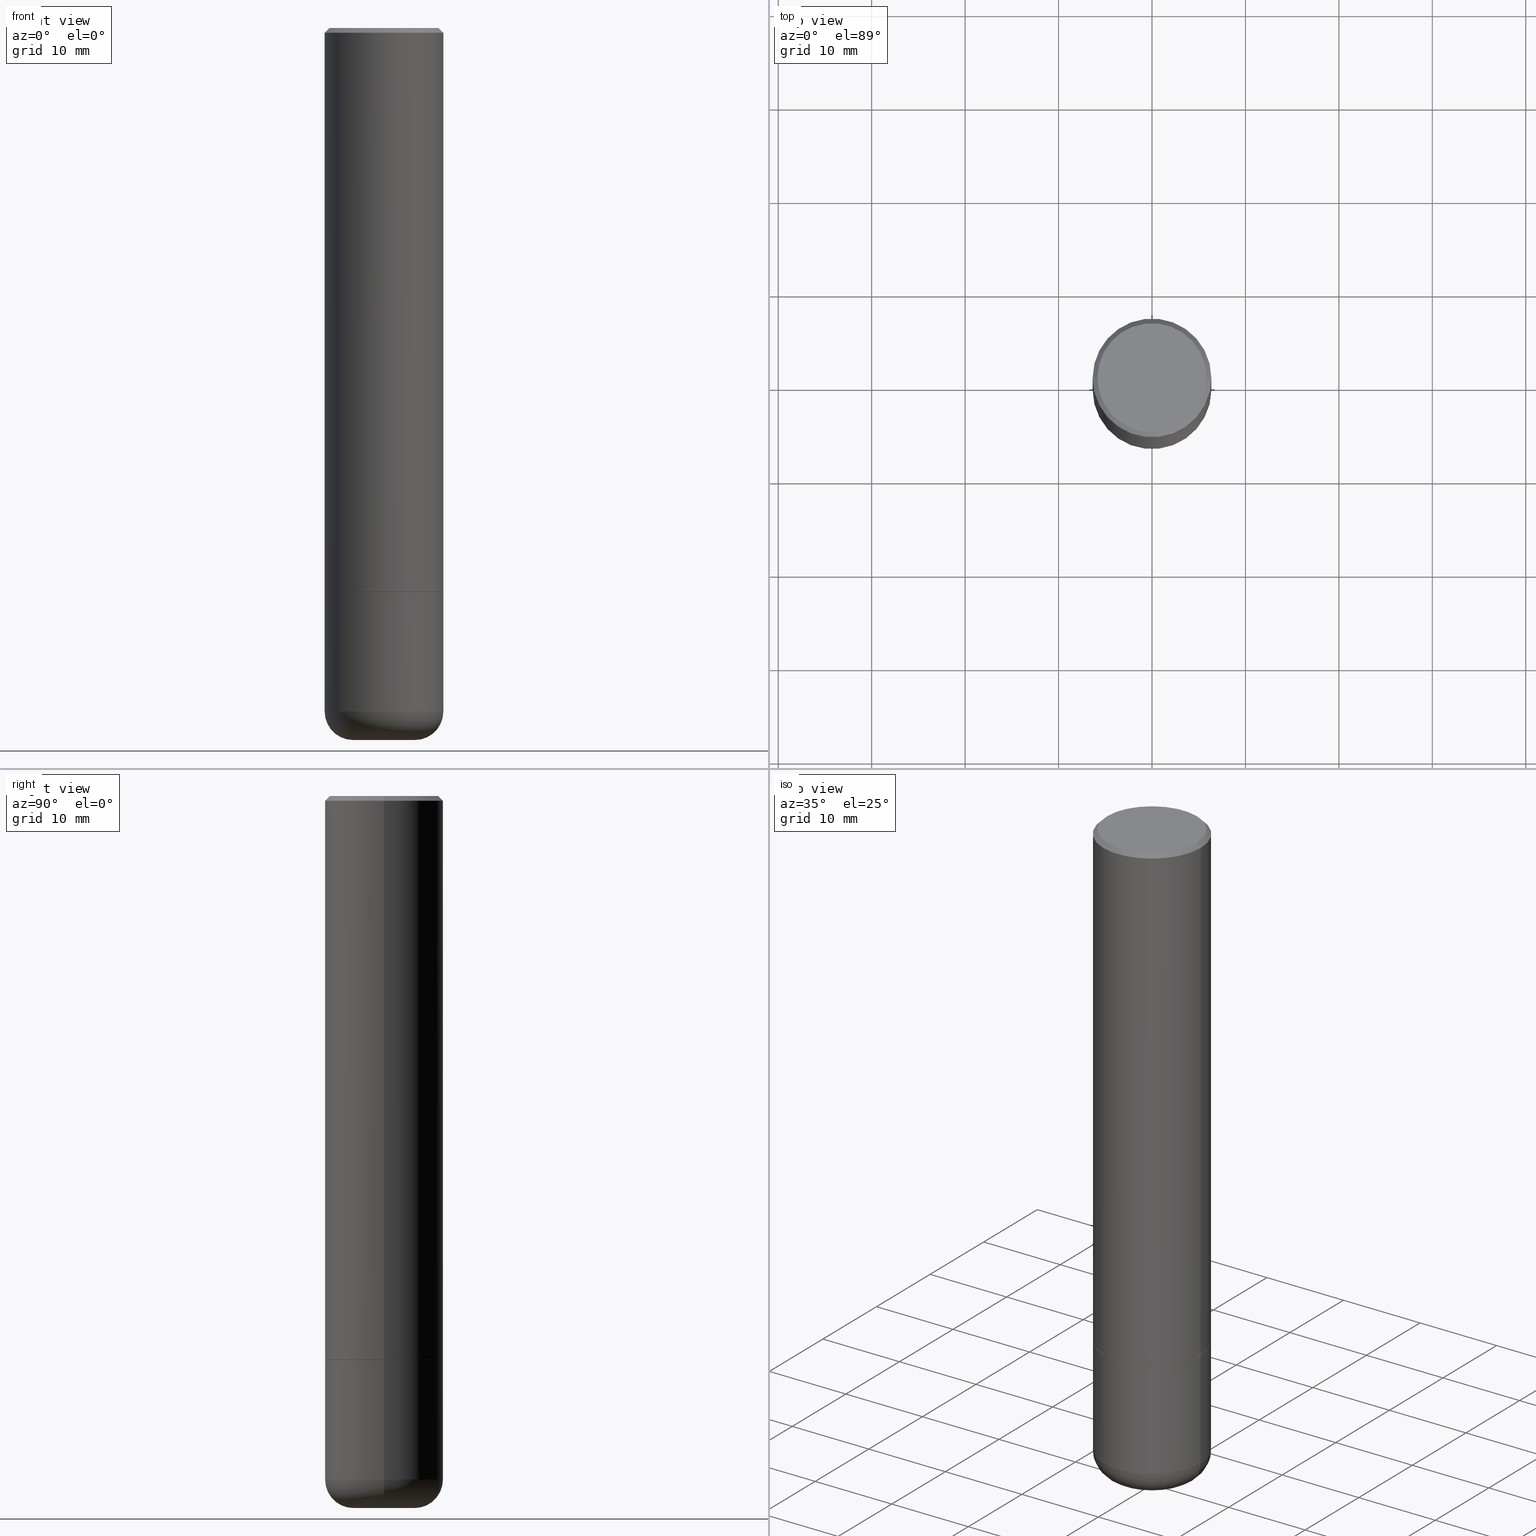
[diagram: canonical four-view strip — front | top / right | iso, engineering-drawing reading convention]
A machine part, canonical four-view strip (front | top / right | iso — engineering-drawing reading convention). The complete STEP part file that produces these views, byte-faithful:
ISO-10303-21;
HEADER;
FILE_DESCRIPTION (( 'STEP AP203' ),
    '1' );
FILE_NAME ('35602.STEP',
    '2022-11-02T20:25:44',
    ( '' ),
    ( '' ),
    'SwSTEP 2.0',
    'SolidWorks 2022',
    '' );
FILE_SCHEMA (( 'CONFIG_CONTROL_DESIGN' ));
ENDSEC;

DATA;
#1 = CC_DESIGN_PERSON_AND_ORGANIZATION_ASSIGNMENT ( #394, #461, ( #397 ) ) ;
#2 = LINE ( 'NONE', #32, #192 ) ;
#3 = CONICAL_SURFACE ( 'NONE', #415, 0.2499999999999993061, 0.7853981633974477239 ) ;
#4 = CARTESIAN_POINT ( 'NONE',  ( -0.2499999999999998057, 1.776356839400249084E-15, -1.229733772563725465E-29 ) ) ;
#5 = AXIS2_PLACEMENT_3D ( 'NONE', #239, #318, #245 ) ;
#6 = APPROVAL_ROLE ( '' ) ;
#7 = CARTESIAN_POINT ( 'NONE',  ( -0.2299999999999992328, 1.640996229256267392E-15, 8.537024980189468815E-18 ) ) ;
#8 = PERSON ( 'UNSPECIFIED', 'UNSPECIFIED', 'UNSPECIFIED', ('UNSPECIFIED'), ('UNSPECIFIED'), ('UNSPECIFIED') ) ;
#9 = CARTESIAN_POINT ( 'NONE',  ( -0.2499999999999993061, 1.675911042644698449E-15, -0.02000000000000010797 ) ) ;
#10 = EDGE_CURVE ( 'NONE', #380, #77, #42, .T. ) ;
#11 = CARTESIAN_POINT ( 'NONE',  ( -0.2489999999999995828, -6.517718313361602992E-15, -2.375000000000000000 ) ) ;
#12 = AXIS2_PLACEMENT_3D ( 'NONE', #177, #255, #410 ) ;
#13 = PERSON_AND_ORGANIZATION ( #8, #231 ) ;
#14 = DIRECTION ( 'NONE',  ( -2.445468806185136597E-29, 3.491481338843145583E-15, 1.000000000000000000 ) ) ;
#15 = CC_DESIGN_DATE_AND_TIME_ASSIGNMENT ( #306, #456, ( #445 ) ) ;
#16 = DIRECTION ( 'NONE',  ( 1.000000000000000000, -6.982962677686259611E-15, 0.000000000000000000 ) ) ;
#17 = DIRECTION ( 'NONE',  ( -0.7071067811865232589, 7.493145998870265808E-15, 0.7071067811865715536 ) ) ;
#18 = CIRCLE ( 'NONE', #140, 0.2499999999999995837 ) ;
#19 = DIRECTION ( 'NONE',  ( -1.000000000000000000, 6.982962677686269866E-15, 0.000000000000000000 ) ) ;
#20 = MANIFOLD_SOLID_BREP ( 'Body-Move/Copy2[2]', #265 ) ;
#21 = ORIENTED_EDGE ( 'NONE', *, *, #314, .T. ) ;
#22 = TOROIDAL_SURFACE ( 'NONE', #324, 0.1300000000000001710, 0.1200000000000000927 ) ;
#23 = CARTESIAN_POINT ( 'NONE',  ( 5.807988414689700538E-29, -8.292268179752471696E-15, -2.375000000000000000 ) ) ;
#24 = EDGE_CURVE ( 'NONE', #455, #380, #210, .T. ) ;
#25 = ORIENTED_EDGE ( 'NONE', *, *, #479, .F. ) ;
#26 = DIRECTION ( 'NONE',  ( 1.000000000000000000, -6.982962677686266711E-15, 4.876176775795935793E-29 ) ) ;
#27 = ORIENTED_EDGE ( 'NONE', *, *, #291, .T. ) ;
#28 = DIRECTION ( 'NONE',  ( -1.000000000000000000, 6.982962677686265922E-15, -4.876176775795935793E-29 ) ) ;
#29 = AXIS2_PLACEMENT_3D ( 'NONE', #476, #139, #441 ) ;
#30 = ORIENTED_EDGE ( 'NONE', *, *, #345, .F. ) ;
#31 = ADVANCED_FACE ( 'NONE', ( #236 ), #22, .T. ) ;
#32 = CARTESIAN_POINT ( 'NONE',  ( 0.2489999999999995828, -1.003102588649634920E-14, -2.375000000000000000 ) ) ;
#33 = ORIENTED_EDGE ( 'NONE', *, *, #451, .T. ) ;
#34 = ORIENTED_EDGE ( 'NONE', *, *, #83, .T. ) ;
#35 = PRODUCT_DEFINITION_FORMATION_WITH_SPECIFIED_SOURCE ( 'ANY', '', #393, .NOT_KNOWN. ) ;
#36 = COORDINATED_UNIVERSAL_TIME_OFFSET ( 5, 0, .BEHIND. ) ;
#37 = DIRECTION ( 'NONE',  ( -2.445468806185136597E-29, 3.491481338843145583E-15, 1.000000000000000000 ) ) ;
#38 = PERSON_AND_ORGANIZATION_ROLE ( 'creator' ) ;
#39 = EDGE_LOOP ( 'NONE', ( #178, #71, #25, #220 ) ) ;
#40 = EDGE_CURVE ( 'NONE', #335, #199, #492, .T. ) ;
#41 = DIRECTION ( 'NONE',  ( 0.7071067811865471286, -7.319954787623254468E-15, -0.7071067811865479058 ) ) ;
#42 = LINE ( 'NONE', #417, #216 ) ;
#43 = ADVANCED_FACE ( 'NONE', ( #423 ), #214, .T. ) ;
#44 = DIRECTION ( 'NONE',  ( -2.445468806185136877E-29, 3.491481338843145188E-15, 1.000000000000000000 ) ) ;
#45 = AXIS2_PLACEMENT_3D ( 'NONE', #85, #241, #360 ) ;
#46 = EDGE_CURVE ( 'NONE', #199, #375, #399, .T. ) ;
#47 = DIRECTION ( 'NONE',  ( -2.445468806185136597E-29, 3.491481338843145583E-15, 1.000000000000000000 ) ) ;
#48 = DIRECTION ( 'NONE',  ( -6.982962677686266711E-15, -1.000000000000000000, 3.491481338843145583E-15 ) ) ;
#49 = PERSON_AND_ORGANIZATION ( #8, #231 ) ;
#50 = DIRECTION ( 'NONE',  ( -2.445468806185136597E-29, 3.491481338843145583E-15, 1.000000000000000000 ) ) ;
#51 = CONICAL_SURFACE ( 'NONE', #76, 0.1022878157401959226, 1.535889741755009696 ) ;
#52 = DIRECTION ( 'NONE',  ( 2.438088387897960049E-29, -3.491481338843145188E-15, -1.000000000000000000 ) ) ;
#53 = EDGE_CURVE ( 'NONE', #70, #254, #342, .T. ) ;
#54 = CARTESIAN_POINT ( 'NONE',  ( 0.1022878157401959226, -1.117537689716662180E-14, -2.999767298070359800 ) ) ;
#55 = CARTESIAN_POINT ( 'NONE',  ( 0.2499999999999998057, -1.745740669421565297E-15, 1.219044193948982967E-29 ) ) ;
#56 =( GEOMETRIC_REPRESENTATION_CONTEXT ( 3 ) GLOBAL_UNCERTAINTY_ASSIGNED_CONTEXT ( ( #87 ) ) GLOBAL_UNIT_ASSIGNED_CONTEXT ( ( #336, #300, #229 ) ) REPRESENTATION_CONTEXT ( 'NONE', 'WORKASPACE' ) );
#57 = ORIENTED_EDGE ( 'NONE', *, *, #219, .T. ) ;
#58 = CIRCLE ( 'NONE', #458, 0.1200000000000000927 ) ;
#59 = DIRECTION ( 'NONE',  ( -2.445468806185136597E-29, 3.491481338843145583E-15, 1.000000000000000000 ) ) ;
#60 = APPLICATION_CONTEXT ( 'configuration controlled 3d designs of mechanical parts and assemblies' ) ;
#61 = ADVANCED_FACE ( 'NONE', ( #119 ), #426, .T. ) ;
#62 = EDGE_LOOP ( 'NONE', ( #27, #81, #490, #327 ) ) ;
#63 = FACE_OUTER_BOUND ( 'NONE', #377, .T. ) ;
#64 = EDGE_LOOP ( 'NONE', ( #295, #403, #385, #138 ) ) ;
#65 = DIRECTION ( 'NONE',  ( 2.445468806185136597E-29, -3.491481338843145583E-15, -1.000000000000000000 ) ) ;
#66 = VERTEX_POINT ( 'NONE', #7 ) ;
#67 = EDGE_CURVE ( 'NONE', #475, #108, #162, .T. ) ;
#68 = DIRECTION ( 'NONE',  ( -2.445468806185136597E-29, 3.491481338843145583E-15, 1.000000000000000000 ) ) ;
#69 = AXIS2_PLACEMENT_3D ( 'NONE', #487, #457, #160 ) ;
#70 = VERTEX_POINT ( 'NONE', #420 ) ;
#71 = ORIENTED_EDGE ( 'NONE', *, *, #105, .T. ) ;
#72 = APPROVAL_DATE_TIME ( #234, #343 ) ;
#73 = CARTESIAN_POINT ( 'NONE',  ( 0.2499999999999993061, -1.784954126219741456E-15, -0.02000000000000010797 ) ) ;
#74 = VECTOR ( 'NONE', #41, 39.37007874015748143 ) ;
#75 = CARTESIAN_POINT ( 'NONE',  ( 5.805542945883514935E-29, -8.288776698413628688E-15, -2.374000000000000110 ) ) ;
#76 = AXIS2_PLACEMENT_3D ( 'NONE', #373, #483, #19 ) ;
#77 = VERTEX_POINT ( 'NONE', #73 ) ;
#78 = ADVANCED_FACE ( 'NONE', ( #195 ), #91, .T. ) ;
#79 = CARTESIAN_POINT ( 'NONE',  ( 0.000000000000000000, 0.000000000000000000, 0.000000000000000000 ) ) ;
#80 = APPLICATION_CONTEXT ( 'configuration controlled 3d designs of mechanical parts and assemblies' ) ;
#81 = ORIENTED_EDGE ( 'NONE', *, *, #407, .T. ) ;
#82 = ORIENTED_EDGE ( 'NONE', *, *, #53, .F. ) ;
#83 = EDGE_CURVE ( 'NONE', #108, #446, #331, .T. ) ;
#84 = APPROVAL_DATE_TIME ( #358, #485 ) ;
#85 = CARTESIAN_POINT ( 'NONE',  ( 0.000000000000000000, 0.000000000000000000, 0.000000000000000000 ) ) ;
#86 = AXIS2_PLACEMENT_3D ( 'NONE', #319, #48, #170 ) ;
#87 = UNCERTAINTY_MEASURE_WITH_UNIT (LENGTH_MEASURE( 1.000000000000000082E-05 ), #336, 'distance_accuracy_value', 'NONE');
#88 = DIRECTION ( 'NONE',  ( 1.000000000000000000, -6.982962677686269077E-15, 0.000000000000000000 ) ) ;
#89 = PERSON_AND_ORGANIZATION ( #8, #231 ) ;
#90 = CARTESIAN_POINT ( 'NONE',  ( -0.1289528157401959862, -8.918652260793341109E-15, -3.000000000000000444 ) ) ;
#91 = CYLINDRICAL_SURFACE ( 'NONE', #45, 0.2499999999999994449 ) ;
#92 = CC_DESIGN_SECURITY_CLASSIFICATION ( #397, ( #35 ) ) ;
#93 = EDGE_CURVE ( 'NONE', #254, #475, #208, .T. ) ;
#94 = CIRCLE ( 'NONE', #280, 0.2489999999999995828 ) ;
#95 = FACE_OUTER_BOUND ( 'NONE', #173, .T. ) ;
#96 = CARTESIAN_POINT ( 'NONE',  ( 1.606081415867835743E-15, 0.2299999999999992328, -7.987721954438203042E-16 ) ) ;
#97 = ORIENTED_EDGE ( 'NONE', *, *, #40, .F. ) ;
#98 = EDGE_CURVE ( 'NONE', #347, #335, #309, .T. ) ;
#99 = DIRECTION ( 'NONE',  ( 0.9999619230641714207, -6.890705306874825328E-15, -0.008726535498369011531 ) ) ;
#100 = ORIENTED_EDGE ( 'NONE', *, *, #168, .T. ) ;
#101 = CONICAL_SURFACE ( 'NONE', #424, 0.2489999999999995828, 0.7853981633974141952 ) ;
#102 = CARTESIAN_POINT ( 'NONE',  ( 0.2500000000000000555, -1.180122287867913443E-14, -2.880004569232299527 ) ) ;
#103 = ORIENTED_EDGE ( 'NONE', *, *, #168, .F. ) ;
#104 = DIRECTION ( 'NONE',  ( -2.445468806185136597E-29, 3.491481338843145583E-15, 1.000000000000000000 ) ) ;
#105 = EDGE_CURVE ( 'NONE', #106, #455, #355, .T. ) ;
#106 = VERTEX_POINT ( 'NONE', #11 ) ;
#107 = CARTESIAN_POINT ( 'NONE',  ( 7.042961335728249090E-29, -1.005548220925756617E-14, -2.880004569232299527 ) ) ;
#108 = VERTEX_POINT ( 'NONE', #90 ) ;
#109 = AXIS2_PLACEMENT_3D ( 'NONE', #330, #224, #473 ) ;
#110 = VECTOR ( 'NONE', #151, 39.37007874015748143 ) ;
#111 = ORIENTED_EDGE ( 'NONE', *, *, #46, .T. ) ;
#112 = MECHANICAL_CONTEXT ( 'NONE', #60, 'mechanical' ) ;
#113 = DIRECTION ( 'NONE',  ( -2.445468806185136597E-29, 3.491481338843145583E-15, 1.000000000000000000 ) ) ;
#114 = EDGE_CURVE ( 'NONE', #66, #188, #481, .T. ) ;
#115 = LINE ( 'NONE', #302, #74 ) ;
#116 = ORIENTED_EDGE ( 'NONE', *, *, #345, .T. ) ;
#117 = CIRCLE ( 'NONE', #109, 0.2499999999999995837 ) ;
#118 = CIRCLE ( 'NONE', #142, 0.1022878157401959226 ) ;
#119 = FACE_OUTER_BOUND ( 'NONE', #276, .T. ) ;
#120 = ORIENTED_EDGE ( 'NONE', *, *, #381, .T. ) ;
#121 = CARTESIAN_POINT ( 'NONE',  ( 0.000000000000000000, 0.000000000000000000, 0.000000000000000000 ) ) ;
#122 = ORIENTED_EDGE ( 'NONE', *, *, #312, .F. ) ;
#123 = APPROVAL_STATUS ( 'not_yet_approved' ) ;
#124 = CARTESIAN_POINT ( 'NONE',  ( 7.336406418555409790E-29, -1.047444401652943635E-14, -3.000000000000000444 ) ) ;
#125 = CARTESIAN_POINT ( 'NONE',  ( 1.745740669421621503E-15, 0.2499999999999912847, -2.375000000000000888 ) ) ;
#126 = VECTOR ( 'NONE', #44, 39.37007874015748143 ) ;
#127 = VECTOR ( 'NONE', #470, 39.37007874015748143 ) ;
#128 = CYLINDRICAL_SURFACE ( 'NONE', #450, 0.2499999999999994449 ) ;
#129 = PERSON_AND_ORGANIZATION_ROLE ( 'design_supplier' ) ;
#130 = ADVANCED_FACE ( 'NONE', ( #285 ), #176, .F. ) ;
#131 = DIRECTION ( 'NONE',  ( 2.445468806185136597E-29, -3.491481338843145583E-15, -1.000000000000000000 ) ) ;
#132 = CARTESIAN_POINT ( 'NONE',  ( 7.336406418555409790E-29, -1.047444401652943635E-14, -3.000000000000000444 ) ) ;
#133 = AXIS2_PLACEMENT_3D ( 'NONE', #132, #284, #16 ) ;
#134 = FACE_OUTER_BOUND ( 'NONE', #427, .T. ) ;
#135 = EDGE_CURVE ( 'NONE', #446, #347, #301, .T. ) ;
#136 = ADVANCED_FACE ( 'NONE', ( #471 ), #128, .T. ) ;
#137 = DIRECTION ( 'NONE',  ( 1.000000000000000000, -6.982962677686269866E-15, 0.000000000000000000 ) ) ;
#138 = ORIENTED_EDGE ( 'NONE', *, *, #24, .F. ) ;
#139 = DIRECTION ( 'NONE',  ( 2.445468806185136597E-29, -3.491481338843145583E-15, -1.000000000000000000 ) ) ;
#140 = AXIS2_PLACEMENT_3D ( 'NONE', #75, #452, #272 ) ;
#141 = ORIENTED_EDGE ( 'NONE', *, *, #98, .T. ) ;
#142 = AXIS2_PLACEMENT_3D ( 'NONE', #218, #414, #137 ) ;
#143 = CARTESIAN_POINT ( 'NONE',  ( 7.336406418555409790E-29, -1.047444401652943635E-14, -3.000000000000000444 ) ) ;
#144 = EDGE_LOOP ( 'NONE', ( #489, #34, #264, #186 ) ) ;
#145 = DIRECTION ( 'NONE',  ( -2.445468806185136597E-29, 3.491481338843145583E-15, 1.000000000000000000 ) ) ;
#146 = EDGE_LOOP ( 'NONE', ( #409, #21 ) ) ;
#147 = CARTESIAN_POINT ( 'NONE',  ( 5.807988414689700538E-29, -8.292268179752471696E-15, -2.375000000000000000 ) ) ;
#148 = APPROVAL_PERSON_ORGANIZATION ( #463, #485, #163 ) ;
#149 = APPROVAL_STATUS ( 'not_yet_approved' ) ;
#150 = AXIS2_PLACEMENT_3D ( 'NONE', #156, #307, #453 ) ;
#151 = DIRECTION ( 'NONE',  ( 0.9993908270190957621, -6.978169709227543066E-15, -0.03489949670250130226 ) ) ;
#152 = EDGE_CURVE ( 'NONE', #70, #475, #166, .T. ) ;
#153 = EDGE_LOOP ( 'NONE', ( #448, #33, #116, #370 ) ) ;
#154 = ORIENTED_EDGE ( 'NONE', *, *, #93, .T. ) ;
#155 = COORDINATED_UNIVERSAL_TIME_OFFSET ( 5, 0, .BEHIND. ) ;
#156 = CARTESIAN_POINT ( 'NONE',  ( 5.807988414689700538E-29, -8.292268179752471696E-15, -2.375000000000000000 ) ) ;
#157 = LENGTH_MEASURE_WITH_UNIT ( LENGTH_MEASURE( 0.02539999999999999897 ), #421 );
#158 = ADVANCED_FACE ( 'NONE', ( #203 ), #294, .T. ) ;
#159 = VECTOR ( 'NONE', #296, 39.37007874015748143 ) ;
#160 = DIRECTION ( 'NONE',  ( 1.000000000000000000, -6.982962677686262766E-15, 0.000000000000000000 ) ) ;
#161 = CALENDAR_DATE ( 2022, 2, 11 ) ;
#162 = LINE ( 'NONE', #303, #359 ) ;
#163 = APPROVAL_ROLE ( '' ) ;
#164 = CARTESIAN_POINT ( 'NONE',  ( 5.807988414689700538E-29, -8.292268179752471696E-15, -2.375000000000000000 ) ) ;
#165 = AXIS2_PLACEMENT_3D ( 'NONE', #121, #491, #198 ) ;
#166 = LINE ( 'NONE', #281, #127 ) ;
#167 = CONICAL_SURFACE ( 'NONE', #29, 0.1022878157401959226, 1.535889741755009696 ) ;
#168 = EDGE_CURVE ( 'NONE', #446, #108, #238, .T. ) ;
#169 = COORDINATED_UNIVERSAL_TIME_OFFSET ( 5, 0, .BEHIND. ) ;
#170 = DIRECTION ( 'NONE',  ( 1.000000000000000000, -6.982962677686262766E-15, 0.000000000000000000 ) ) ;
#171 = DIMENSIONAL_EXPONENTS ( 1.000000000000000000, 0.000000000000000000, 0.000000000000000000, 0.000000000000000000, 0.000000000000000000, 0.000000000000000000, 0.000000000000000000 ) ;
#172 = DIRECTION ( 'NONE',  ( -1.000000000000000000, 6.982962677686267499E-15, 0.000000000000000000 ) ) ;
#173 = EDGE_LOOP ( 'NONE', ( #477, #111 ) ) ;
#174 = LINE ( 'NONE', #55, #408 ) ;
#175 = EDGE_CURVE ( 'NONE', #66, #235, #436, .T. ) ;
#176 = CONICAL_SURFACE ( 'NONE', #350, 0.1289528157401959862, 1.562069680534929894 ) ;
#177 = CARTESIAN_POINT ( 'NONE',  ( 7.042961335728249090E-29, -1.005548220925756617E-14, -2.880004569232299527 ) ) ;
#178 = ORIENTED_EDGE ( 'NONE', *, *, #326, .T. ) ;
#179 = ORIENTED_EDGE ( 'NONE', *, *, #191, .F. ) ;
#180 = DIRECTION ( 'NONE',  ( -1.000000000000000000, 6.982962677686259611E-15, 0.000000000000000000 ) ) ;
#181 = ORIENTED_EDGE ( 'NONE', *, *, #291, .F. ) ;
#182 = CARTESIAN_POINT ( 'NONE',  ( 0.1289528157401959862, -1.135912455072205370E-14, -3.000000000000000444 ) ) ;
#183 = EDGE_LOOP ( 'NONE', ( #460, #290, #439, #120 ) ) ;
#184 = APPROVAL ( #123, 'UNSPECIFIED' ) ;
#185 = FACE_OUTER_BOUND ( 'NONE', #225, .T. ) ;
#186 = ORIENTED_EDGE ( 'NONE', *, *, #351, .F. ) ;
#187 = DIRECTION ( 'NONE',  ( -2.438088387897960049E-29, 3.491481338843145188E-15, 1.000000000000000000 ) ) ;
#188 = VERTEX_POINT ( 'NONE', #282 ) ;
#189 = APPLICATION_PROTOCOL_DEFINITION ( 'international standard', 'config_control_design', 1994, #80 ) ;
#190 = CARTESIAN_POINT ( 'NONE',  ( 7.042961335728249090E-29, -1.005548220925756617E-14, -2.880004569232299527 ) ) ;
#191 = EDGE_CURVE ( 'NONE', #106, #257, #94, .T. ) ;
#192 = VECTOR ( 'NONE', #344, 39.37007874015748854 ) ;
#193 = CARTESIAN_POINT ( 'NONE',  ( 0.1289528157401959862, -1.137491671602577837E-14, -3.000000000000000444 ) ) ;
#194 = AXIS2_PLACEMENT_3D ( 'NONE', #287, #104, #221 ) ;
#195 = FACE_OUTER_BOUND ( 'NONE', #482, .T. ) ;
#196 = CALENDAR_DATE ( 2022, 2, 11 ) ;
#197 = CARTESIAN_POINT ( 'NONE',  ( 5.805542945883514935E-29, -8.288776698413628688E-15, -2.374000000000000110 ) ) ;
#198 = DIRECTION ( 'NONE',  ( 1.000000000000000000, 0.000000000000000000, 0.000000000000000000 ) ) ;
#199 = VERTEX_POINT ( 'NONE', #462 ) ;
#200 = AXIS2_PLACEMENT_3D ( 'NONE', #124, #313, #209 ) ;
#201 = DIRECTION ( 'NONE',  ( -2.445468806185136597E-29, 3.491481338843145583E-15, 1.000000000000000000 ) ) ;
#202 = CARTESIAN_POINT ( 'NONE',  ( 0.000000000000000000, 0.000000000000000000, 0.000000000000000000 ) ) ;
#203 = FACE_OUTER_BOUND ( 'NONE', #183, .T. ) ;
#204 = CC_DESIGN_PERSON_AND_ORGANIZATION_ASSIGNMENT ( #227, #337, ( #393 ) ) ;
#205 = COORDINATED_UNIVERSAL_TIME_OFFSET ( 5, 0, .BEHIND. ) ;
#206 = AXIS2_PLACEMENT_3D ( 'NONE', #107, #289, #405 ) ;
#207 = DIRECTION ( 'NONE',  ( 7.105427357601001859E-15, 1.000000000000000000, -3.491481338843145583E-15 ) ) ;
#208 = CIRCLE ( 'NONE', #5, 0.1022878157401959226 ) ;
#209 = DIRECTION ( 'NONE',  ( 1.000000000000000000, -6.982962677686259611E-15, 0.000000000000000000 ) ) ;
#210 = CIRCLE ( 'NONE', #275, 0.2499999999999995837 ) ;
#211 = DIRECTION ( 'NONE',  ( 1.000000000000000000, -6.982962677686266711E-15, 4.876176775795935232E-29 ) ) ;
#212 = CARTESIAN_POINT ( 'NONE',  ( 0.2499999999999995837, -1.003800884917403364E-14, -2.375000000000000000 ) ) ;
#213 = ORIENTED_EDGE ( 'NONE', *, *, #10, .T. ) ;
#214 = CONICAL_SURFACE ( 'NONE', #150, 0.2489999999999995828, 0.7853981633974141952 ) ;
#215 = FACE_OUTER_BOUND ( 'NONE', #39, .T. ) ;
#216 = VECTOR ( 'NONE', #339, 39.37007874015748143 ) ;
#217 = ORIENTED_EDGE ( 'NONE', *, *, #278, .F. ) ;
#218 = CARTESIAN_POINT ( 'NONE',  ( 7.335837353245335032E-29, -1.047363154208458493E-14, -2.999767298070359800 ) ) ;
#219 = EDGE_CURVE ( 'NONE', #108, #335, #58, .T. ) ;
#220 = ORIENTED_EDGE ( 'NONE', *, *, #467, .F. ) ;
#221 = DIRECTION ( 'NONE',  ( 1.000000000000000000, -6.982962677686267499E-15, 0.000000000000000000 ) ) ;
#222 = CIRCLE ( 'NONE', #194, 0.2499999999999993061 ) ;
#223 = ORIENTED_EDGE ( 'NONE', *, *, #10, .F. ) ;
#224 = DIRECTION ( 'NONE',  ( -2.445468806185136597E-29, 3.491481338843145583E-15, 1.000000000000000000 ) ) ;
#225 = EDGE_LOOP ( 'NONE', ( #310, #379, #181 ) ) ;
#226 = CC_DESIGN_PERSON_AND_ORGANIZATION_ASSIGNMENT ( #454, #38, ( #445 ) ) ;
#227 = PERSON_AND_ORGANIZATION ( #8, #231 ) ;
#228 = ORIENTED_EDGE ( 'NONE', *, *, #67, .T. ) ;
#229 =( NAMED_UNIT ( * ) SI_UNIT ( $, .STERADIAN. ) SOLID_ANGLE_UNIT ( ) );
#230 = EDGE_LOOP ( 'NONE', ( #304, #154, #228, #103 ) ) ;
#231 = ORGANIZATION ( 'UNSPECIFIED', 'UNSPECIFIED', '' ) ;
#232 = CIRCLE ( 'NONE', #367, 0.2499999999999993061 ) ;
#233 = EDGE_LOOP ( 'NONE', ( #82, #297, #250 ) ) ;
#234 = DATE_AND_TIME ( #419, #357 ) ;
#235 = VERTEX_POINT ( 'NONE', #247 ) ;
#236 = FACE_OUTER_BOUND ( 'NONE', #288, .T. ) ;
#237 = LOCAL_TIME ( 16, 25, 44.00000000000000000, #169 ) ;
#238 = CIRCLE ( 'NONE', #133, 0.1289528157401959862 ) ;
#239 = CARTESIAN_POINT ( 'NONE',  ( 7.335837353245335032E-29, -1.047363154208458493E-14, -2.999767298070359800 ) ) ;
#240 = ADVANCED_FACE ( 'NONE', ( #95 ), #400, .F. ) ;
#241 = DIRECTION ( 'NONE',  ( -2.445468806185136597E-29, 3.491481338843145583E-15, 1.000000000000000000 ) ) ;
#242 = PRODUCT_DEFINITION_SHAPE ( 'NONE', 'NONE',  #445 ) ;
#243 = PERSON_AND_ORGANIZATION_ROLE ( 'creator' ) ;
#244 = DESIGN_CONTEXT ( 'detailed design', #80, 'design' ) ;
#245 = DIRECTION ( 'NONE',  ( 1.000000000000000000, -6.982962677686269866E-15, 0.000000000000000000 ) ) ;
#246 = COORDINATED_UNIVERSAL_TIME_OFFSET ( 5, 0, .BEHIND. ) ;
#247 = CARTESIAN_POINT ( 'NONE',  ( -0.2499999999999993061, 1.675911042644698449E-15, -0.02000000000000010797 ) ) ;
#248 = DIRECTION ( 'NONE',  ( -1.000000000000000000, 6.982962677686265922E-15, -4.876176775795935793E-29 ) ) ;
#249 = CARTESIAN_POINT ( 'NONE',  ( -0.2500000000000000555, -7.397518355104768470E-15, -2.880004569232299527 ) ) ;
#250 = ORIENTED_EDGE ( 'NONE', *, *, #93, .F. ) ;
#251 = FACE_OUTER_BOUND ( 'NONE', #233, .T. ) ;
#252 = LOCAL_TIME ( 16, 25, 44.00000000000000000, #246 ) ;
#253 = AXIS2_PLACEMENT_3D ( 'NONE', #402, #464, #172 ) ;
#254 = VERTEX_POINT ( 'NONE', #54 ) ;
#255 = DIRECTION ( 'NONE',  ( -2.445468806185136597E-29, 3.491481338843145583E-15, 1.000000000000000000 ) ) ;
#256 = CC_DESIGN_PERSON_AND_ORGANIZATION_ASSIGNMENT ( #89, #243, ( #35 ) ) ;
#257 = VERTEX_POINT ( 'NONE', #364 ) ;
#258 = CARTESIAN_POINT ( 'NONE',  ( 4.890937612370299433E-31, -6.982962677686328587E-17, -0.02000000000000010797 ) ) ;
#259 = ORIENTED_EDGE ( 'NONE', *, *, #326, .F. ) ;
#260 = LINE ( 'NONE', #444, #159 ) ;
#261 = ADVANCED_FACE ( 'NONE', ( #277 ), #429, .F. ) ;
#262 = AXIS2_PLACEMENT_3D ( 'NONE', #23, #59, #376 ) ;
#263 = DIRECTION ( 'NONE',  ( -1.000000000000000000, 6.982962677686267499E-15, 0.000000000000000000 ) ) ;
#264 = ORIENTED_EDGE ( 'NONE', *, *, #135, .T. ) ;
#265 = CLOSED_SHELL ( 'NONE', ( #305, #78, #472, #158, #136, #43, #433, #261 ) ) ;
#266 = APPROVAL_ROLE ( '' ) ;
#267 = DIRECTION ( 'NONE',  ( -0.9999619230641714207, 6.952228252019186602E-15, -0.008726535498369011531 ) ) ;
#268 = CARTESIAN_POINT ( 'NONE',  ( -0.1022878157401959226, -9.759359542388745931E-15, -2.999767298070359800 ) ) ;
#269 = ORIENTED_EDGE ( 'NONE', *, *, #46, .F. ) ;
#270 = CC_DESIGN_APPROVAL ( #485, ( #397 ) ) ;
#271 = TOROIDAL_SURFACE ( 'NONE', #206, 0.1300000000000001710, 0.1200000000000000927 ) ;
#272 = DIRECTION ( 'NONE',  ( 1.000000000000000000, -6.982962677686270655E-15, 0.000000000000000000 ) ) ;
#273 = CARTESIAN_POINT ( 'NONE',  ( 0.1022878157401959226, -1.117537689716662180E-14, -2.999767298070359800 ) ) ;
#274 = ADVANCED_FACE ( 'NONE', ( #185 ), #51, .F. ) ;
#275 = AXIS2_PLACEMENT_3D ( 'NONE', #197, #113, #428 ) ;
#276 = EDGE_LOOP ( 'NONE', ( #141, #484, #449, #217 ) ) ;
#277 = FACE_OUTER_BOUND ( 'NONE', #146, .T. ) ;
#278 = EDGE_CURVE ( 'NONE', #347, #375, #174, .T. ) ;
#279 = DATE_TIME_ROLE ( 'classification_date' ) ;
#280 = AXIS2_PLACEMENT_3D ( 'NONE', #164, #50, #315 ) ;
#281 = CARTESIAN_POINT ( 'NONE',  ( -0.1022878157401959226, -9.759359542388745931E-15, -2.999767298070359800 ) ) ;
#282 = CARTESIAN_POINT ( 'NONE',  ( 0.2299999999999992328, -1.681434332853594278E-15, 8.537024980212318048E-18 ) ) ;
#283 = DATE_AND_TIME ( #387, #478 ) ;
#284 = DIRECTION ( 'NONE',  ( -2.445468806185136597E-29, 3.491481338843145583E-15, 1.000000000000000000 ) ) ;
#285 = FACE_OUTER_BOUND ( 'NONE', #62, .T. ) ;
#286 = AXIS2_PLACEMENT_3D ( 'NONE', #391, #468, #395 ) ;
#287 = CARTESIAN_POINT ( 'NONE',  ( 4.890937612370299433E-31, -6.982962677686328587E-17, -0.02000000000000010797 ) ) ;
#288 = EDGE_LOOP ( 'NONE', ( #100, #57, #443, #299 ) ) ;
#289 = DIRECTION ( 'NONE',  ( -2.445468806185136597E-29, 3.491481338843145583E-15, 1.000000000000000000 ) ) ;
#290 = ORIENTED_EDGE ( 'NONE', *, *, #114, .F. ) ;
#291 = EDGE_CURVE ( 'NONE', #475, #254, #118, .T. ) ;
#292 = DIRECTION ( 'NONE',  ( 1.000000000000000000, -6.982962677686266711E-15, 4.875813741439116029E-29 ) ) ;
#293 = APPROVAL_PERSON_ORGANIZATION ( #486, #343, #266 ) ;
#294 = CONICAL_SURFACE ( 'NONE', #253, 0.2499999999999993061, 0.7853981633974477239 ) ;
#295 = ORIENTED_EDGE ( 'NONE', *, *, #105, .F. ) ;
#296 = DIRECTION ( 'NONE',  ( -2.445468806185136877E-29, 3.491481338843145188E-15, 1.000000000000000000 ) ) ;
#297 = ORIENTED_EDGE ( 'NONE', *, *, #152, .T. ) ;
#298 = DIRECTION ( 'NONE',  ( -2.445468806185136597E-29, 3.491481338843145583E-15, 1.000000000000000000 ) ) ;
#299 = ORIENTED_EDGE ( 'NONE', *, *, #135, .F. ) ;
#300 =( NAMED_UNIT ( * ) PLANE_ANGLE_UNIT ( ) SI_UNIT ( $, .RADIAN. ) );
#301 = CIRCLE ( 'NONE', #86, 0.1200000000000000927 ) ;
#302 = CARTESIAN_POINT ( 'NONE',  ( 0.2499999999999993061, -1.784954126219741456E-15, -0.02000000000000010797 ) ) ;
#303 = CARTESIAN_POINT ( 'NONE',  ( -0.1289528157401959862, -9.573971317033095915E-15, -3.000000000000000444 ) ) ;
#304 = ORIENTED_EDGE ( 'NONE', *, *, #407, .F. ) ;
#305 = ADVANCED_FACE ( 'NONE', ( #215 ), #101, .T. ) ;
#306 = DATE_AND_TIME ( #196, #422 ) ;
#307 = DIRECTION ( 'NONE',  ( -2.445468806185136597E-29, 3.491481338843145583E-15, 1.000000000000000000 ) ) ;
#308 = AXIS2_PLACEMENT_3D ( 'NONE', #437, #68, #26 ) ;
#309 = CIRCLE ( 'NONE', #430, 0.2500000000000000555 ) ;
#310 = ORIENTED_EDGE ( 'NONE', *, *, #152, .F. ) ;
#311 = SECURITY_CLASSIFICATION_LEVEL ( 'unclassified' ) ;
#312 = EDGE_CURVE ( 'NONE', #455, #235, #260, .T. ) ;
#313 = DIRECTION ( 'NONE',  ( -2.445468806185136597E-29, 3.491481338843145583E-15, 1.000000000000000000 ) ) ;
#314 = EDGE_CURVE ( 'NONE', #188, #66, #382, .T. ) ;
#315 = DIRECTION ( 'NONE',  ( 1.000000000000000000, -6.982962677686266711E-15, 0.000000000000000000 ) ) ;
#316 = CC_DESIGN_APPROVAL ( #184, ( #35 ) ) ;
#317 = VECTOR ( 'NONE', #392, 39.37007874015748143 ) ;
#318 = DIRECTION ( 'NONE',  ( -2.445468806185136597E-29, 3.491481338843145583E-15, 1.000000000000000000 ) ) ;
#319 = CARTESIAN_POINT ( 'NONE',  ( 0.1300000000000001710, -1.096326735735678116E-14, -2.880004569232299527 ) ) ;
#320 = PRODUCT_RELATED_PRODUCT_CATEGORY ( 'detail', '', ( #393 ) ) ;
#321 = CARTESIAN_POINT ( 'NONE',  ( 7.336406418555409790E-29, -1.047444401652943635E-14, -3.000000000000000444 ) ) ;
#322 = CONICAL_SURFACE ( 'NONE', #404, 0.1289528157401959862, 1.562069680534929894 ) ;
#323 = DIRECTION ( 'NONE',  ( -2.445468806185136597E-29, 3.491481338843145583E-15, 1.000000000000000000 ) ) ;
#324 = AXIS2_PLACEMENT_3D ( 'NONE', #190, #37, #388 ) ;
#325 = DIRECTION ( 'NONE',  ( 2.438088387897960049E-29, -3.491481338843145188E-15, -1.000000000000000000 ) ) ;
#326 = EDGE_CURVE ( 'NONE', #257, #106, #442, .T. ) ;
#327 = ORIENTED_EDGE ( 'NONE', *, *, #67, .F. ) ;
#328 = DIRECTION ( 'NONE',  ( 1.000000000000000000, -6.982962677686266711E-15, 0.000000000000000000 ) ) ;
#329 = ORIENTED_EDGE ( 'NONE', *, *, #312, .T. ) ;
#330 = CARTESIAN_POINT ( 'NONE',  ( 5.807988414689700538E-29, -8.292268179752471696E-15, -2.375000000000000000 ) ) ;
#331 = CIRCLE ( 'NONE', #200, 0.1289528157401959862 ) ;
#332 = ORIENTED_EDGE ( 'NONE', *, *, #278, .T. ) ;
#333 = ADVANCED_FACE ( 'NONE', ( #251 ), #167, .F. ) ;
#334 = CARTESIAN_POINT ( 'NONE',  ( 5.807988414689700538E-29, -8.292268179752471696E-15, -2.375000000000000000 ) ) ;
#335 = VERTEX_POINT ( 'NONE', #249 ) ;
#336 =( CONVERSION_BASED_UNIT ( 'INCH', #157 ) LENGTH_UNIT ( ) NAMED_UNIT ( #171 ) );
#337 = PERSON_AND_ORGANIZATION_ROLE ( 'design_owner' ) ;
#338 = APPROVAL_PERSON_ORGANIZATION ( #49, #184, #6 ) ;
#339 = DIRECTION ( 'NONE',  ( -2.445468806185136877E-29, 3.491481338843145188E-15, 1.000000000000000000 ) ) ;
#340 = AXIS2_PLACEMENT_3D ( 'NONE', #125, #52, #248 ) ;
#341 = CARTESIAN_POINT ( 'NONE',  ( -0.2499999999999995559, -2.402946323194996317E-15, -2.374000000000000110 ) ) ;
#342 = LINE ( 'NONE', #273, #110 ) ;
#343 = APPROVAL ( #149, 'UNSPECIFIED' ) ;
#344 = DIRECTION ( 'NONE',  ( 0.7071067811865232589, -2.468850131082003836E-15, 0.7071067811865715536 ) ) ;
#345 = EDGE_CURVE ( 'NONE', #77, #235, #232, .T. ) ;
#346 = DIRECTION ( 'NONE',  ( 2.445468806185136597E-29, -3.491481338843145583E-15, -1.000000000000000000 ) ) ;
#347 = VERTEX_POINT ( 'NONE', #102 ) ;
#348 = VECTOR ( 'NONE', #99, 39.37007874015748854 ) ;
#349 = ADVANCED_BREP_SHAPE_REPRESENTATION ( '35602', ( #356, #20, #165 ), #56 ) ;
#350 = AXIS2_PLACEMENT_3D ( 'NONE', #321, #131, #362 ) ;
#351 = EDGE_CURVE ( 'NONE', #335, #347, #466, .T. ) ;
#352 = DIRECTION ( 'NONE',  ( 1.000000000000000000, -6.982962677686266711E-15, 4.876176775795935793E-29 ) ) ;
#353 = CARTESIAN_POINT ( 'NONE',  ( 7.042961335728249090E-29, -1.005548220925756617E-14, -2.880004569232299527 ) ) ;
#354 = SHAPE_DEFINITION_REPRESENTATION ( #242, #349 ) ;
#355 = LINE ( 'NONE', #432, #389 ) ;
#356 = MANIFOLD_SOLID_BREP ( 'Body-Move/Copy2[1]', #401 ) ;
#357 = LOCAL_TIME ( 16, 25, 44.00000000000000000, #36 ) ;
#358 = DATE_AND_TIME ( #469, #237 ) ;
#359 = VECTOR ( 'NONE', #267, 39.37007874015748854 ) ;
#360 = DIRECTION ( 'NONE',  ( 1.000000000000000000, -6.982962677686266711E-15, 4.876176775795935232E-29 ) ) ;
#361 = ADVANCED_FACE ( 'NONE', ( #369 ), #271, .T. ) ;
#362 = DIRECTION ( 'NONE',  ( -1.000000000000000000, 6.982962677686259611E-15, 0.000000000000000000 ) ) ;
#363 = ORIENTED_EDGE ( 'NONE', *, *, #479, .T. ) ;
#364 = CARTESIAN_POINT ( 'NONE',  ( 0.2489999999999995828, -1.003102588649634920E-14, -2.375000000000000000 ) ) ;
#365 = CARTESIAN_POINT ( 'NONE',  ( 0.2499999999999995837, -1.003451736783519379E-14, -2.374000000000000110 ) ) ;
#366 = ADVANCED_FACE ( 'NONE', ( #480 ), #322, .F. ) ;
#367 = AXIS2_PLACEMENT_3D ( 'NONE', #258, #298, #371 ) ;
#368 = EDGE_LOOP ( 'NONE', ( #122, #384, #213, #411 ) ) ;
#369 = FACE_OUTER_BOUND ( 'NONE', #144, .T. ) ;
#370 = ORIENTED_EDGE ( 'NONE', *, *, #175, .F. ) ;
#371 = DIRECTION ( 'NONE',  ( 1.000000000000000000, -6.982962677686267499E-15, 0.000000000000000000 ) ) ;
#372 = ORIENTED_EDGE ( 'NONE', *, *, #351, .T. ) ;
#373 = CARTESIAN_POINT ( 'NONE',  ( 7.335837353245335032E-29, -1.047363154208458493E-14, -2.999767298070359800 ) ) ;
#374 = AXIS2_PLACEMENT_3D ( 'NONE', #412, #323, #292 ) ;
#375 = VERTEX_POINT ( 'NONE', #212 ) ;
#376 = DIRECTION ( 'NONE',  ( 1.000000000000000000, -6.982962677686266711E-15, 0.000000000000000000 ) ) ;
#377 = EDGE_LOOP ( 'NONE', ( #97, #372, #332, #269 ) ) ;
#378 = PLANE ( 'NONE',  #440 ) ;
#379 = ORIENTED_EDGE ( 'NONE', *, *, #53, .T. ) ;
#380 = VERTEX_POINT ( 'NONE', #365 ) ;
#381 = EDGE_CURVE ( 'NONE', #235, #77, #222, .T. ) ;
#382 = CIRCLE ( 'NONE', #374, 0.2299999999999992328 ) ;
#383 = APPLICATION_PROTOCOL_DEFINITION ( 'international standard', 'config_control_design', 1994, #60 ) ;
#384 = ORIENTED_EDGE ( 'NONE', *, *, #24, .T. ) ;
#385 = ORIENTED_EDGE ( 'NONE', *, *, #467, .T. ) ;
#386 = CC_DESIGN_PERSON_AND_ORGANIZATION_ASSIGNMENT ( #13, #129, ( #35 ) ) ;
#387 = CALENDAR_DATE ( 2022, 2, 11 ) ;
#388 = DIRECTION ( 'NONE',  ( 1.000000000000000000, -6.982962677686270655E-15, 4.883557194083114583E-29 ) ) ;
#389 = VECTOR ( 'NONE', #17, 39.37007874015748854 ) ;
#390 = APPROVAL_STATUS ( 'not_yet_approved' ) ;
#391 = CARTESIAN_POINT ( 'NONE',  ( -2.087702828670439639E-46, 2.980686340760894400E-32, 8.537024980200822558E-18 ) ) ;
#392 = DIRECTION ( 'NONE',  ( -0.7071067811865471286, 2.468850131082252722E-15, -0.7071067811865479058 ) ) ;
#393 = PRODUCT ( '35602', '35602', '', ( #112 ) ) ;
#394 = PERSON_AND_ORGANIZATION ( #8, #231 ) ;
#395 = DIRECTION ( 'NONE',  ( 1.000000000000000000, -6.982962677686266711E-15, 4.875813741439116029E-29 ) ) ;
#396 = ADVANCED_FACE ( 'NONE', ( #63 ), #447, .T. ) ;
#397 = SECURITY_CLASSIFICATION ( '', '', #311 ) ;
#398 = APPROVAL_DATE_TIME ( #431, #184 ) ;
#399 = CIRCLE ( 'NONE', #69, 0.2499999999999995837 ) ;
#400 = PLANE ( 'NONE',  #340 ) ;
#401 = CLOSED_SHELL ( 'NONE', ( #130, #31, #61, #274, #333, #240, #396, #361, #366 ) ) ;
#402 = CARTESIAN_POINT ( 'NONE',  ( 4.890937612370299433E-31, -6.982962677686328587E-17, -0.02000000000000010797 ) ) ;
#403 = ORIENTED_EDGE ( 'NONE', *, *, #191, .T. ) ;
#404 = AXIS2_PLACEMENT_3D ( 'NONE', #143, #65, #180 ) ;
#405 = DIRECTION ( 'NONE',  ( 1.000000000000000000, -6.982962677686270655E-15, 4.883557194083114583E-29 ) ) ;
#406 = AXIS2_PLACEMENT_3D ( 'NONE', #79, #201, #352 ) ;
#407 = EDGE_CURVE ( 'NONE', #254, #446, #438, .T. ) ;
#408 = VECTOR ( 'NONE', #474, 39.37007874015748143 ) ;
#409 = ORIENTED_EDGE ( 'NONE', *, *, #114, .T. ) ;
#410 = DIRECTION ( 'NONE',  ( 1.000000000000000000, -6.982962677686269077E-15, 0.000000000000000000 ) ) ;
#411 = ORIENTED_EDGE ( 'NONE', *, *, #381, .F. ) ;
#412 = CARTESIAN_POINT ( 'NONE',  ( -2.087702828670439639E-46, 2.980686340760894400E-32, 8.537024980200822558E-18 ) ) ;
#413 = CC_DESIGN_DATE_AND_TIME_ASSIGNMENT ( #283, #279, ( #397 ) ) ;
#414 = DIRECTION ( 'NONE',  ( -2.445468806185136597E-29, 3.491481338843145583E-15, 1.000000000000000000 ) ) ;
#415 = AXIS2_PLACEMENT_3D ( 'NONE', #488, #346, #263 ) ;
#416 = AXIS2_PLACEMENT_3D ( 'NONE', #96, #325, #28 ) ;
#417 = CARTESIAN_POINT ( 'NONE',  ( 0.2499999999999994449, -1.745740669421562733E-15, 1.219044193948981146E-29 ) ) ;
#418 = EDGE_CURVE ( 'NONE', #375, #199, #117, .T. ) ;
#419 = CALENDAR_DATE ( 2022, 2, 11 ) ;
#420 = CARTESIAN_POINT ( 'NONE',  ( 7.326834392838516262E-29, -1.046154361316562163E-14, -2.996195328835081995 ) ) ;
#421 =( LENGTH_UNIT ( ) NAMED_UNIT ( * ) SI_UNIT ( $, .METRE. ) );
#422 = LOCAL_TIME ( 16, 25, 44.00000000000000000, #155 ) ;
#423 = FACE_OUTER_BOUND ( 'NONE', #64, .T. ) ;
#424 = AXIS2_PLACEMENT_3D ( 'NONE', #334, #145, #328 ) ;
#425 = FACE_OUTER_BOUND ( 'NONE', #153, .T. ) ;
#426 = CYLINDRICAL_SURFACE ( 'NONE', #406, 0.2499999999999998057 ) ;
#427 = EDGE_LOOP ( 'NONE', ( #259, #179 ) ) ;
#428 = DIRECTION ( 'NONE',  ( 1.000000000000000000, -6.982962677686270655E-15, 0.000000000000000000 ) ) ;
#429 = PLANE ( 'NONE',  #416 ) ;
#430 = AXIS2_PLACEMENT_3D ( 'NONE', #353, #14, #88 ) ;
#431 = DATE_AND_TIME ( #161, #252 ) ;
#432 = CARTESIAN_POINT ( 'NONE',  ( -0.2489999999999995828, -6.523016767709824606E-15, -2.375000000000000000 ) ) ;
#433 = ADVANCED_FACE ( 'NONE', ( #134 ), #378, .F. ) ;
#434 = CARTESIAN_POINT ( 'NONE',  ( -0.1300000000000001710, -9.131776652769433533E-15, -2.880004569232299527 ) ) ;
#435 = DIRECTION ( 'NONE',  ( -1.000000000000000000, 7.105427357601001859E-15, 0.000000000000000000 ) ) ;
#436 = LINE ( 'NONE', #9, #317 ) ;
#437 = CARTESIAN_POINT ( 'NONE',  ( 0.000000000000000000, 0.000000000000000000, 0.000000000000000000 ) ) ;
#438 = LINE ( 'NONE', #182, #348 ) ;
#439 = ORIENTED_EDGE ( 'NONE', *, *, #175, .T. ) ;
#440 = AXIS2_PLACEMENT_3D ( 'NONE', #147, #187, #459 ) ;
#441 = DIRECTION ( 'NONE',  ( -1.000000000000000000, 6.982962677686269866E-15, 0.000000000000000000 ) ) ;
#442 = CIRCLE ( 'NONE', #262, 0.2489999999999995828 ) ;
#443 = ORIENTED_EDGE ( 'NONE', *, *, #98, .F. ) ;
#444 = CARTESIAN_POINT ( 'NONE',  ( -0.2499999999999994449, 1.776356839400246520E-15, -1.229733772563723783E-29 ) ) ;
#445 = PRODUCT_DEFINITION ( 'UNKNOWN', '', #35, #244 ) ;
#446 = VERTEX_POINT ( 'NONE', #193 ) ;
#447 = CYLINDRICAL_SURFACE ( 'NONE', #308, 0.2499999999999998057 ) ;
#448 = ORIENTED_EDGE ( 'NONE', *, *, #314, .F. ) ;
#449 = ORIENTED_EDGE ( 'NONE', *, *, #418, .F. ) ;
#450 = AXIS2_PLACEMENT_3D ( 'NONE', #202, #47, #211 ) ;
#451 = EDGE_CURVE ( 'NONE', #188, #77, #115, .T. ) ;
#452 = DIRECTION ( 'NONE',  ( -2.445468806185136597E-29, 3.491481338843145583E-15, 1.000000000000000000 ) ) ;
#453 = DIRECTION ( 'NONE',  ( 1.000000000000000000, -6.982962677686266711E-15, 0.000000000000000000 ) ) ;
#454 = PERSON_AND_ORGANIZATION ( #8, #231 ) ;
#455 = VERTEX_POINT ( 'NONE', #341 ) ;
#456 = DATE_TIME_ROLE ( 'creation_date' ) ;
#457 = DIRECTION ( 'NONE',  ( -2.445468806185136597E-29, 3.491481338843145583E-15, 1.000000000000000000 ) ) ;
#458 = AXIS2_PLACEMENT_3D ( 'NONE', #434, #207, #435 ) ;
#459 = DIRECTION ( 'NONE',  ( 1.000000000000000000, -6.982962677686265922E-15, 4.876176775795935793E-29 ) ) ;
#460 = ORIENTED_EDGE ( 'NONE', *, *, #451, .F. ) ;
#461 = PERSON_AND_ORGANIZATION_ROLE ( 'classification_officer' ) ;
#462 = CARTESIAN_POINT ( 'NONE',  ( -0.2499999999999995837, -7.397518355104770047E-15, -2.375000000000000000 ) ) ;
#463 = PERSON_AND_ORGANIZATION ( #8, #231 ) ;
#464 = DIRECTION ( 'NONE',  ( 2.445468806185136597E-29, -3.491481338843145583E-15, -1.000000000000000000 ) ) ;
#465 = CC_DESIGN_APPROVAL ( #343, ( #445 ) ) ;
#466 = CIRCLE ( 'NONE', #12, 0.2500000000000000555 ) ;
#467 = EDGE_CURVE ( 'NONE', #257, #380, #2, .T. ) ;
#468 = DIRECTION ( 'NONE',  ( -2.445468806185136597E-29, 3.491481338843145583E-15, 1.000000000000000000 ) ) ;
#469 = CALENDAR_DATE ( 2022, 2, 11 ) ;
#470 = DIRECTION ( 'NONE',  ( -0.9993908270190957621, 6.856857904024554893E-15, -0.03489949670250130226 ) ) ;
#471 = FACE_OUTER_BOUND ( 'NONE', #368, .T. ) ;
#472 = ADVANCED_FACE ( 'NONE', ( #425 ), #3, .T. ) ;
#473 = DIRECTION ( 'NONE',  ( 1.000000000000000000, -6.982962677686262766E-15, 0.000000000000000000 ) ) ;
#474 = DIRECTION ( 'NONE',  ( -2.445468806185136877E-29, 3.491481338843145188E-15, 1.000000000000000000 ) ) ;
#475 = VERTEX_POINT ( 'NONE', #268 ) ;
#476 = CARTESIAN_POINT ( 'NONE',  ( 7.335837353245335032E-29, -1.047363154208458493E-14, -2.999767298070359800 ) ) ;
#477 = ORIENTED_EDGE ( 'NONE', *, *, #418, .T. ) ;
#478 = LOCAL_TIME ( 16, 25, 44.00000000000000000, #205 ) ;
#479 = EDGE_CURVE ( 'NONE', #380, #455, #18, .T. ) ;
#480 = FACE_OUTER_BOUND ( 'NONE', #230, .T. ) ;
#481 = CIRCLE ( 'NONE', #286, 0.2299999999999992328 ) ;
#482 = EDGE_LOOP ( 'NONE', ( #363, #329, #30, #223 ) ) ;
#483 = DIRECTION ( 'NONE',  ( 2.445468806185136597E-29, -3.491481338843145583E-15, -1.000000000000000000 ) ) ;
#484 = ORIENTED_EDGE ( 'NONE', *, *, #40, .T. ) ;
#485 = APPROVAL ( #390, 'UNSPECIFIED' ) ;
#486 = PERSON_AND_ORGANIZATION ( #8, #231 ) ;
#487 = CARTESIAN_POINT ( 'NONE',  ( 5.807988414689700538E-29, -8.292268179752471696E-15, -2.375000000000000000 ) ) ;
#488 = CARTESIAN_POINT ( 'NONE',  ( 4.890937612370299433E-31, -6.982962677686328587E-17, -0.02000000000000010797 ) ) ;
#489 = ORIENTED_EDGE ( 'NONE', *, *, #219, .F. ) ;
#490 = ORIENTED_EDGE ( 'NONE', *, *, #83, .F. ) ;
#491 = DIRECTION ( 'NONE',  ( 0.000000000000000000, 0.000000000000000000, 1.000000000000000000 ) ) ;
#492 = LINE ( 'NONE', #4, #126 ) ;
ENDSEC;
END-ISO-10303-21;
